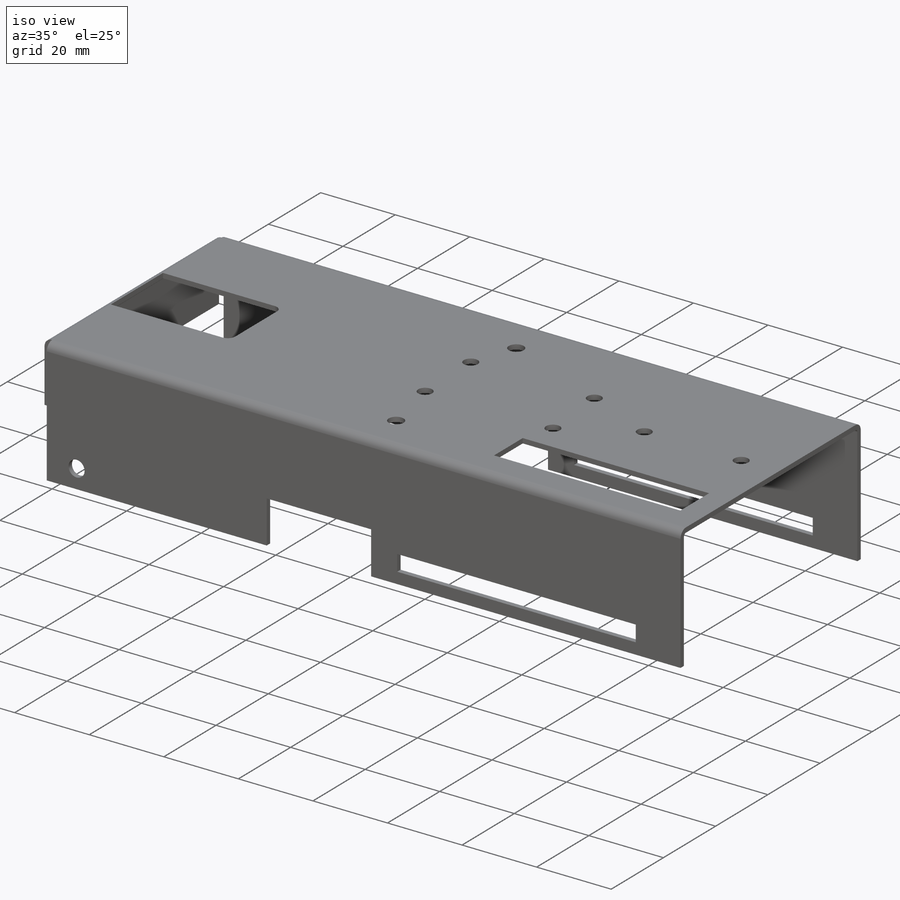
[diagram: iso view]
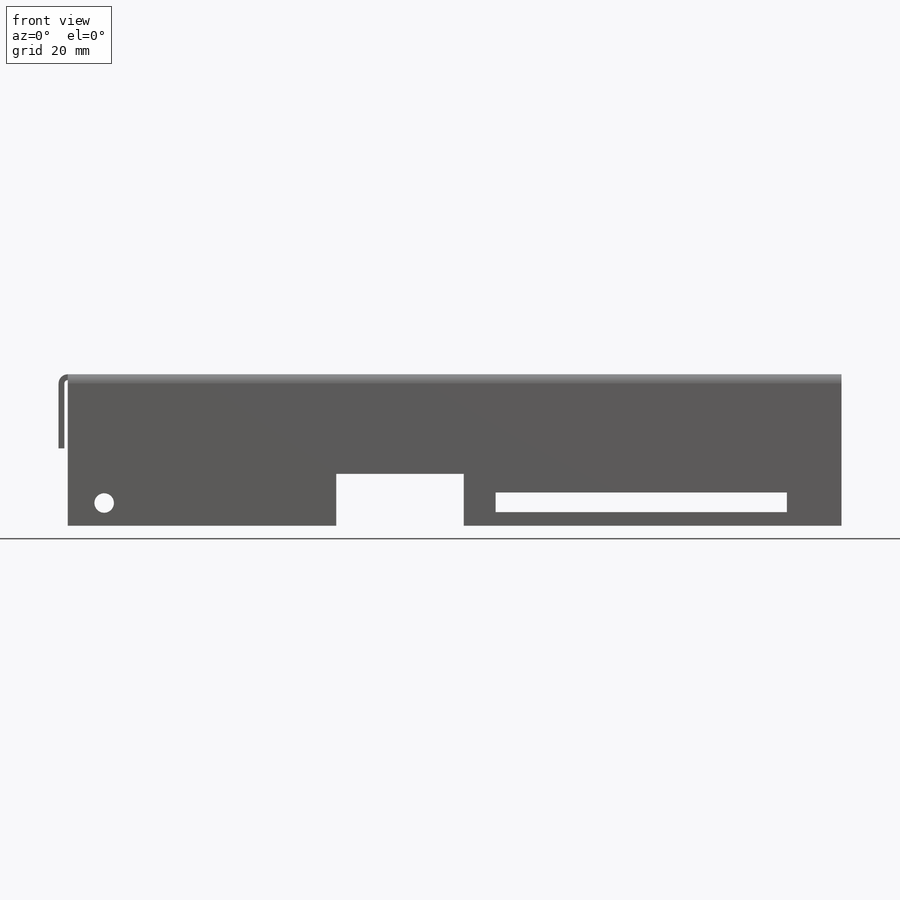
[diagram: front view]
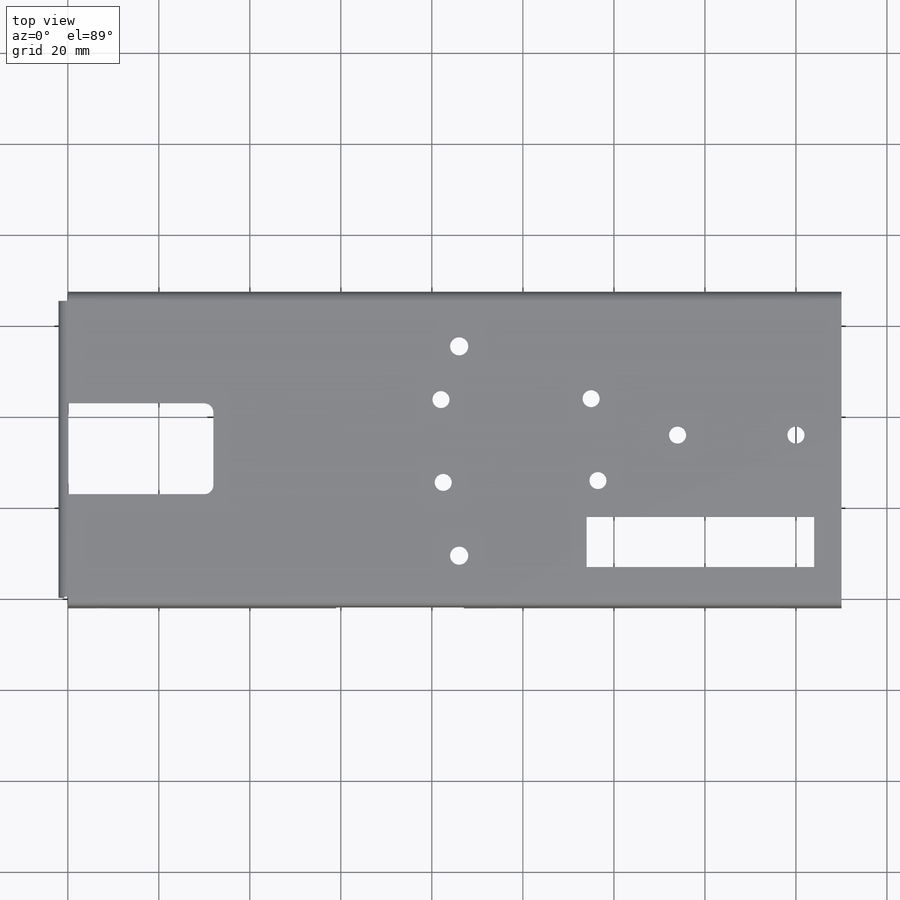
[diagram: top view]
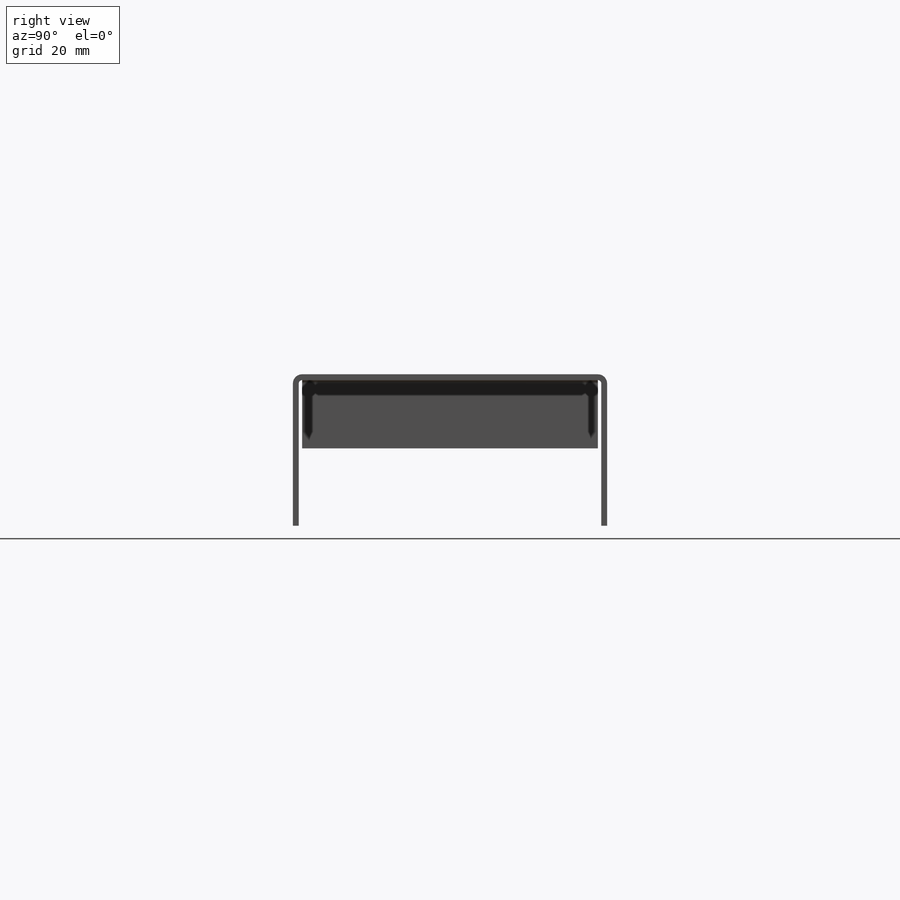
[diagram: right view]
SOLIDWORKS PART (.sldprt)
format: sldprt  version: not decoded by parser v0  size: 415,232 bytes
history: native  units: mm
features: sketch x12, cut_extrude x6, sheet_metal_op x4, material x1 + 3 further entries (+11 scaffold rows collapsed; 1 parser-record rows omitted)
feature tree (38):
  scaffold x11  (default folders/planes/origin — collapsed)
  material  "Material <not specified>"
  sketch  "Sketch1"  dims[c1.D2=10.0mm c1.D4=10.0mm c1.D5=10.0mm c1.D1=65.0mm c2.D2=155.0mm c2.D3=32.5mm c2.D4=8.0mm c3.D2=170.0mm]
  sheet_metal_op  "Sheet-Metal1"
  sheet_metal_op  "Base-Flange1"
  sketch  "Sketch6"  dims[c1.D1=4.0mm c1.D2=4.0mm c1.D3=4.0mm c1.D9=3.0mm c1.D10=1.0mm c1.D12=1.2mm c2.D1=8.0mm c2.D2=5.0mm c2.D3=60.0mm c2.D4=64.0mm c2.D5=4.0mm c2.D6=3.0mm c2.D7=12.0mm c3.D3=7.0mm c3.D8=11.41mm c3.D9=30.0mm c3.D10=6.0mm c3.D11=5.0mm c3.D12=6.5mm c3.D13=17.0mm c3.D14=~14.190826mm c3.D1=0.7366mm c3.D4=90.0deg c3.D5=1.0 c4.D8=0.645mm c4.D9=0.645mm c4.D1=0.7366mm c4.D2=500.0mm c4.D3=0.0mm c4.D6=10.0mm c4.D7=32.0mm c4.Edge-Flange3=0.0]
  sketch  "Sketch12"  dims[D1=38.0mm D2=12.0mm D3=32.5mm]
  sheet_metal_op  "EdgeBend3"
  sketch  "Sketch16"  dims[c1.D1=~9.493276mm c1.D2=4.0mm c1.D3=4.0mm c1.D5=4.0mm c2.D1=4.0mm c2.D3=4.0mm c2.D8=~3.315284mm c2.D12=~7.422342mm c2.D2=4.0mm c3.D3=4.0mm c3.D1=6.0mm c3.D2=24.0mm c4.D3=6.0mm c4.D4=4.0mm c4.D2=28.0mm c4.D5=26.0mm c4.D1=32.5mm c5.D2=64.0mm c5.D3=95.0mm c6.D2=10.0mm c6.D3=104.0mm c6.D4=15.0mm c6.D5=26.0mm c6.D6=50.0mm c6.D7=1.0mm c6.D8=140.0mm c6.D9=8.0mm c6.D10=28.0mm c6.D11=46.0mm c7.D10=28.0mm c7.D2=10.0mm c7.D3=1.0mm c7.D7=138.0mm c8.D3=9.0mm]
  cut_extrude  "Cut-Extrude1"  Depth=0 Edge-Flange7=0
  sketch  "Sketch32"
  sheet_metal_op  "EdgeBend7"
  sketch  "Sketch34"  dims[c1.D1=4.3mm c1.D3=4.3mm c1.D2=8.0mm c2.D3=5.0mm c2.D4=4.3mm c2.D5=64.0mm c2.D6=12.0mm c2.D7=3.0mm c2.D8=7.0mm c2.D9=11.41mm c2.D10=28.0mm c2.D11=~37.052449mm]
  cut_extrude  "Cut-Extrude5"  [1 undecoded]
  sketch  "Sketch36"  dims[c1.D1=4.0mm c1.D2=4.0mm c1.D3=~5.438778mm c1.D4=4.0mm c1.D5=3.75mm c1.D6=3.75mm c1.D7=3.75mm c1.D8=3.75mm c1.D9=3.75mm c1.D10=3.75mm c1.D11=3.75mm c1.D12=3.75mm c2.D1=17.5mm c2.D2=19.0mm c2.D3=7.0mm c2.D4=11.0mm c2.D9=34.0mm c2.D10=0.4mm c2.D11=33.0mm c2.D12=0.2mm]
  cut_extrude  "Cut-Extrude6"  Depth=10mm
  sketch  "Sketch37"  dims[c1.D1=3.75mm c1.D2=3.75mm c1.D3=3.75mm c1.D4=3.75mm c2.D2=10.0mm c2.D4=36.0mm]
  cut_extrude  "Cut-Extrude7"  Depth=10mm
  "Flat-Pattern1"
  sketch  "Bend-Lines1"
  sketch  "Bounding-Box1"
  "Flatten-<EdgeBend3>1"
  "Flatten-<EdgeBend7>1"
  parser-record x1  (decoder bookkeeping rows leaked as tree rows — omitted from the tree; the rows remain in map.json)
  sketch  "Sketch39"  dims[D1=25.0mm D2=25.0mm D3=0.0mm D4=25.0mm D5=25.0mm D6=25.0mm D7=25.0mm]
  cut_extrude  "Cut-Extrude8"  Depth=10mm
  sketch  "Sketch40"  dims[D1=10.0mm]
  cut_extrude  "Cut-Extrude9"  Depth=10mm
decode coverage: 14 of 22 modeling features carry decoded parameters; 3 rows unclassified (native names shown)
note: ~ marks probable driven/reference dimensions
note: 1 parameter value undecoded
note: suppression state not decoded; provenance and decode notes live in map.json
